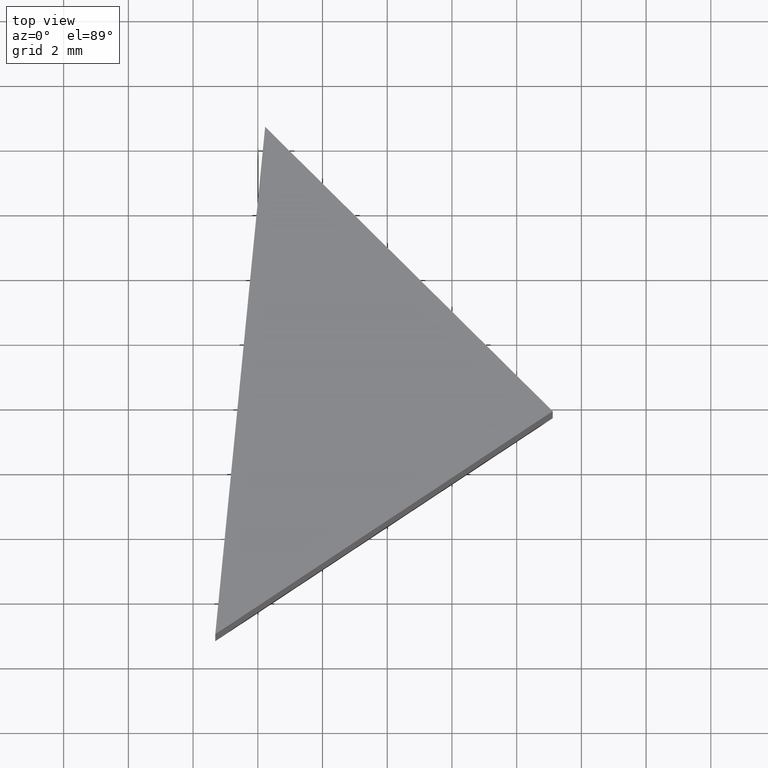
[diagram: clean part render]
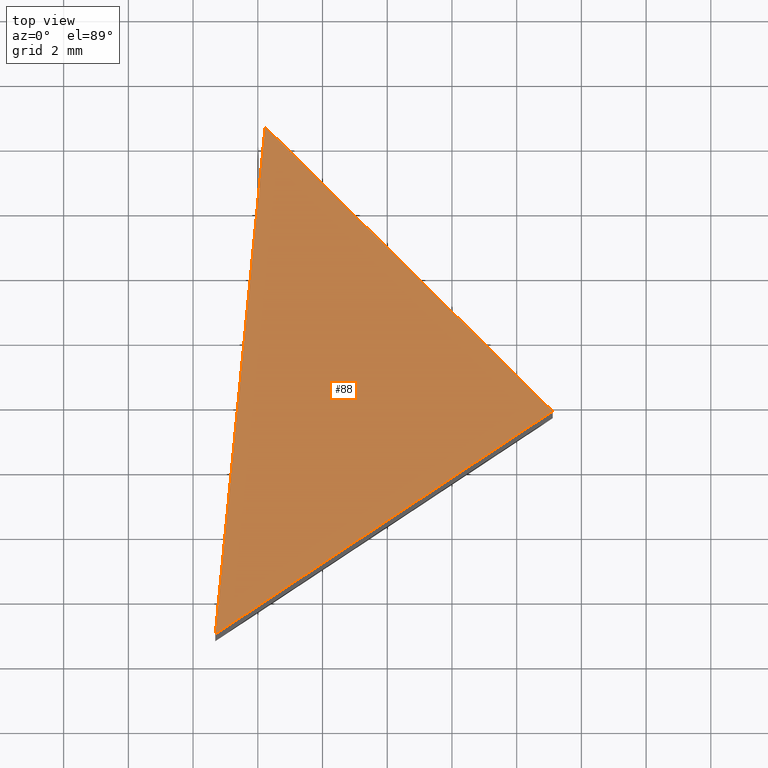
[diagram: same view with one face highlighted and labeled with its STEP entity id]
A machine part, top view. The second image highlights one B-rep face of the part: STEP entity #88.
In plain terms, the highlighted planar face has unit normal (0, 0, -1).
Its self-contained STEP definition (entity closure, byte-faithful):
#9 = EDGE_LOOP ( 'NONE', ( #113, #70, #119 ) ) ;
#11 = PLANE ( 'NONE',  #162 ) ;
#23 = LINE ( 'NONE', #87, #122 ) ;
#27 = DIRECTION ( 'NONE',  ( -1.000000000000000000, 0.0000000000000000000, 0.0000000000000000000 ) ) ;
#29 = VERTEX_POINT ( 'NONE', #127 ) ;
#35 = VERTEX_POINT ( 'NONE', #120 ) ;
#39 = CARTESIAN_POINT ( 'NONE',  ( 0.6861709744360347000, 0.8474711050240408800, 12.50000000000000000 ) ) ;
#45 = CARTESIAN_POINT ( 'NONE',  ( 11.11417082101136700, 7.739990180066555100, 12.50000000000000000 ) ) ;
#57 = LINE ( 'NONE', #125, #89 ) ;
#68 = FACE_OUTER_BOUND ( 'NONE', #9, .T. ) ;
#70 = ORIENTED_EDGE ( 'NONE', *, *, #79, .T. ) ;
#79 = EDGE_CURVE ( 'NONE', #35, #29, #57, .T. ) ;
#82 = EDGE_CURVE ( 'NONE', #29, #149, #23, .T. ) ;
#87 = CARTESIAN_POINT ( 'NONE',  ( 0.6861709744360347000, 0.8474711050240408800, 12.50000000000000000 ) ) ;
#88 = ADVANCED_FACE ( 'NONE', ( #68 ), #11, .F. ) ;
#89 = VECTOR ( 'NONE', #140, 1000.000000000000000 ) ;
#92 = LINE ( 'NONE', #45, #164 ) ;
#93 = DIRECTION ( 'NONE',  ( 0.8342399877260263700, 0.5514015260034009800, -0.0000000000000000000 ) ) ;
#113 = ORIENTED_EDGE ( 'NONE', *, *, #133, .T. ) ;
#118 = DIRECTION ( 'NONE',  ( 0.0000000000000000000, 0.0000000000000000000, -1.000000000000000000 ) ) ;
#119 = ORIENTED_EDGE ( 'NONE', *, *, #82, .T. ) ;
#120 = CARTESIAN_POINT ( 'NONE',  ( 11.11417082101136700, 7.739990180066555100, 12.50000000000000000 ) ) ;
#122 = VECTOR ( 'NONE', #135, 1000.000000000000100 ) ;
#125 = CARTESIAN_POINT ( 'NONE',  ( 11.11417082101136700, 7.739990180066555100, 12.50000000000000000 ) ) ;
#127 = CARTESIAN_POINT ( 'NONE',  ( 2.227010525918083200, 16.53023374263736000, 12.50000000000000000 ) ) ;
#133 = EDGE_CURVE ( 'NONE', #149, #35, #92, .T. ) ;
#134 = CARTESIAN_POINT ( 'NONE',  ( 0.0000000000000000000, 0.0000000000000000000, 12.50000000000000000 ) ) ;
#135 = DIRECTION ( 'NONE',  ( -0.09777970958415389800, -0.9952080829623715100, -0.0000000000000000000 ) ) ;
#140 = DIRECTION ( 'NONE',  ( -0.7109728236074626100, 0.7032194850056644500, 0.0000000000000000000 ) ) ;
#149 = VERTEX_POINT ( 'NONE', #39 ) ;
#162 = AXIS2_PLACEMENT_3D ( 'NONE', #134, #118, #27 ) ;
#164 = VECTOR ( 'NONE', #93, 1000.000000000000100 ) ;